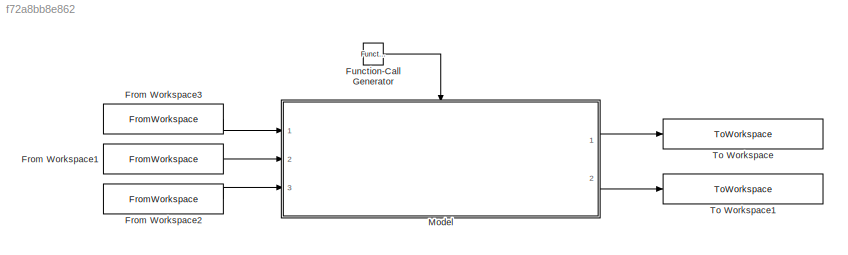
MODEL slx_f72a8bb8e862
KIND model
CONFIG AbsTol = auto
CONFIG FixedStep = 0.01
CONFIG MaxStep = auto
CONFIG MinStep = auto
CONFIG RelTol = 1e-3
CONFIG SampleTimeConstraint = Unconstrained
CONFIG Solver = FixedStepAuto
CONFIG SolverMode = Auto
CONFIG SolverName = FixedStepAuto
CONFIG StartTime = 0.0
CONFIG StopTime = sim_time
BLOCK [FromWorkspace] From Workspace1
  VariableName = CB_Input_CellSOC
  ZeroCross = on
BLOCK [FromWorkspace] From Workspace2
  VariableName = CB_Input_BattMode
  ZeroCross = on
BLOCK [FromWorkspace] From Workspace3
  VariableName = CB_Input_CellV
  ZeroCross = on
BLOCK [Reference] Function-Call Generator  REF=simulink/Ports &
Subsystems/Function-Call
Generator
  Ports = [0, 1]
  SourceBlock = simulink/Ports &\nSubsystems/Function-Call\nGenerator
  SourceType = Function-Call Generator
BLOCK [ModelReference] Model
  CopyOfModelName = CB.slx
  ModelNameDialog = CB.slx
  ModelReferenceVersion = 1.20
  Ports = [3, 2, 0, 1]
  TriggerPortName = Trigger
  TriggerPortStatesWhenEnabling = held
  TriggerPortTriggerType = function-call
  Variant = off
BLOCK [ToWorkspace] To Workspace
  FixptAsFi = on
  MaxDataPoints = inf
  Ports = [1]
  SampleTime = -1
  Save2DSignal = 3-D array (concatenate along third dimension)
  SaveFormat = Timeseries
  VariableName = CB_balancing_cmd
BLOCK [ToWorkspace] To Workspace1
  FixptAsFi = on
  MaxDataPoints = inf
  Ports = [1]
  SampleTime = -1
  Save2DSignal = 3-D array (concatenate along third dimension)
  SaveFormat = Timeseries
  VariableName = CB_balancing_status
LINE From Workspace1:1 -> Model:2
LINE From Workspace2:1 -> Model:3
LINE From Workspace3:1 -> Model:1
LINE Function-Call Generator:1 -> Model:trigger
LINE Model:1 -> To Workspace:1
LINE Model:2 -> To Workspace1:1
